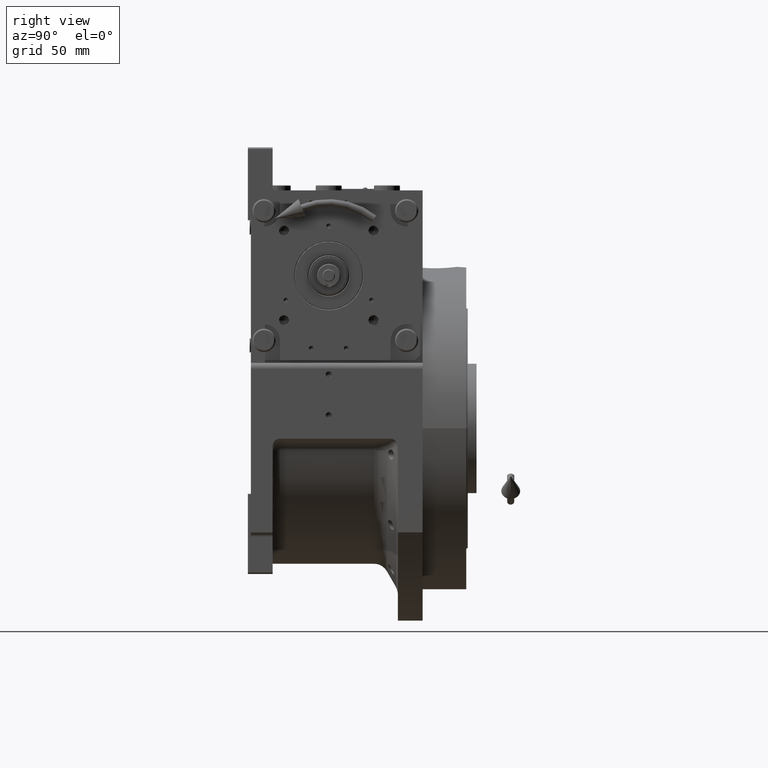
[diagram: clean part render]
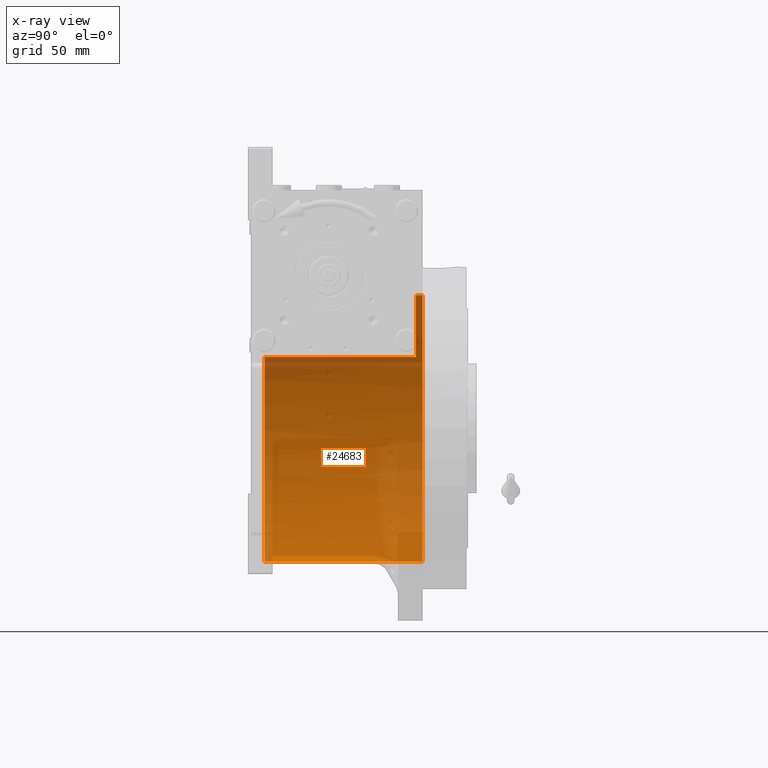
[diagram: x-ray — body ghosted, one internal face saturated and labeled with its STEP entity id]
A machine part, right view, then the same camera in x-ray: the body is ghosted and one INTERNAL B-rep face — a face not visible from any outside direction — is saturated and labeled: STEP entity #24683.
In plain terms, the highlighted cylindrical surface (partial cylindrical patch) has radius 91.5 mm, axis along (0, -1, 0).
Its self-contained STEP definition (entity closure, byte-faithful):
#140 = DIRECTION ( 'NONE',  ( 0.000000000000000000, 1.000000000000000000, 0.000000000000000000 ) ) ;
#471 = DIRECTION ( 'NONE',  ( 0.000000000000000000, -1.000000000000000000, 0.000000000000000000 ) ) ;
#2636 = VECTOR ( 'NONE', #32584, 1000.000000000000000 ) ;
#3146 = VERTEX_POINT ( 'NONE', #62274 ) ;
#4087 = CARTESIAN_POINT ( 'NONE',  ( 1.120551821219827868E-14, 60.00000000000000000, 91.50000000000000000 ) ) ;
#4831 = DIRECTION ( 'NONE',  ( 1.776356839400250465E-15, 0.000000000000000000, -1.000000000000000000 ) ) ;
#5402 = DIRECTION ( 'NONE',  ( -0.000000000000000000, -1.000000000000000000, -0.000000000000000000 ) ) ;
#7322 = FACE_OUTER_BOUND ( 'NONE', #39320, .T. ) ;
#7620 = LINE ( 'NONE', #60126, #17994 ) ;
#8321 = DIRECTION ( 'NONE',  ( 0.000000000000000000, -1.000000000000000000, 0.000000000000000000 ) ) ;
#8366 = CYLINDRICAL_SURFACE ( 'NONE', #15660, 91.50000000000000000 ) ;
#8422 = EDGE_CURVE ( 'NONE', #65023, #26821, #16586, .T. ) ;
#8597 = CIRCLE ( 'NONE', #51888, 91.50000000000000000 ) ;
#11423 = CIRCLE ( 'NONE', #30328, 91.50000000000000000 ) ;
#14100 = CARTESIAN_POINT ( 'NONE',  ( 0.000000000000000000, -44.00000000000000000, -91.50000000000000000 ) ) ;
#15197 = ORIENTED_EDGE ( 'NONE', *, *, #52430, .T. ) ;
#15365 = EDGE_CURVE ( 'NONE', #3146, #68338, #16170, .T. ) ;
#15660 = AXIS2_PLACEMENT_3D ( 'NONE', #24673, #34443, #29584 ) ;
#16170 = LINE ( 'NONE', #26903, #60243 ) ;
#16586 = LINE ( 'NONE', #58993, #2636 ) ;
#17994 = VECTOR ( 'NONE', #8321, 1000.000000000000000 ) ;
#18562 = VERTEX_POINT ( 'NONE', #36864 ) ;
#21677 = EDGE_CURVE ( 'NONE', #18562, #3146, #8597, .T. ) ;
#24673 = CARTESIAN_POINT ( 'NONE',  ( 0.000000000000000000, 69.00000000000004263, 0.000000000000000000 ) ) ;
#24683 = ADVANCED_FACE ( 'NONE', ( #7322 ), #8366, .F. ) ;
#26061 = CARTESIAN_POINT ( 'NONE',  ( 0.000000000000000000, 60.00000000000000000, 0.000000000000000000 ) ) ;
#26590 = ORIENTED_EDGE ( 'NONE', *, *, #8422, .F. ) ;
#26821 = VERTEX_POINT ( 'NONE', #56836 ) ;
#26903 = CARTESIAN_POINT ( 'NONE',  ( 0.000000000000000000, 69.00000000000004263, -91.50000000000000000 ) ) ;
#28598 = EDGE_CURVE ( 'NONE', #68338, #65023, #11423, .T. ) ;
#29584 = DIRECTION ( 'NONE',  ( 0.000000000000000000, 0.000000000000000000, -1.000000000000000000 ) ) ;
#30328 = AXIS2_PLACEMENT_3D ( 'NONE', #67616, #140, #41204 ) ;
#31712 = ORIENTED_EDGE ( 'NONE', *, *, #21677, .F. ) ;
#32433 = ORIENTED_EDGE ( 'NONE', *, *, #63638, .F. ) ;
#32584 = DIRECTION ( 'NONE',  ( -0.000000000000000000, 1.000000000000000000, -0.000000000000000000 ) ) ;
#34443 = DIRECTION ( 'NONE',  ( 0.000000000000000000, -1.000000000000000000, 0.000000000000000000 ) ) ;
#35461 = DIRECTION ( 'NONE',  ( 0.000000000000000000, 1.000000000000000000, 0.000000000000000000 ) ) ;
#35909 = CIRCLE ( 'NONE', #62548, 91.50000000000000000 ) ;
#36864 = CARTESIAN_POINT ( 'NONE',  ( 1.120551821219827868E-14, 64.50000000000000000, 91.50000000000000000 ) ) ;
#36880 = CARTESIAN_POINT ( 'NONE',  ( -77.27386362800814368, -44.00000000000000000, 49.00000000000000000 ) ) ;
#38906 = VERTEX_POINT ( 'NONE', #4087 ) ;
#39320 = EDGE_LOOP ( 'NONE', ( #31712, #15197, #32433, #26590, #64891, #44333 ) ) ;
#41204 = DIRECTION ( 'NONE',  ( 0.000000000000000000, 0.000000000000000000, 1.000000000000000000 ) ) ;
#44333 = ORIENTED_EDGE ( 'NONE', *, *, #15365, .F. ) ;
#51888 = AXIS2_PLACEMENT_3D ( 'NONE', #53077, #5402, #57944 ) ;
#52430 = EDGE_CURVE ( 'NONE', #18562, #38906, #7620, .T. ) ;
#53077 = CARTESIAN_POINT ( 'NONE',  ( 0.000000000000000000, 64.50000000000000000, 0.000000000000000000 ) ) ;
#56836 = CARTESIAN_POINT ( 'NONE',  ( -77.27386362800814368, 60.00000000000000000, 48.99999999999998579 ) ) ;
#57944 = DIRECTION ( 'NONE',  ( 0.000000000000000000, 0.000000000000000000, 1.000000000000000000 ) ) ;
#58993 = CARTESIAN_POINT ( 'NONE',  ( -77.27386362800812947, 69.00000000000004263, 48.99999999999998579 ) ) ;
#60126 = CARTESIAN_POINT ( 'NONE',  ( 1.120551821219827868E-14, 69.00000000000004263, 91.50000000000000000 ) ) ;
#60243 = VECTOR ( 'NONE', #471, 1000.000000000000000 ) ;
#62274 = CARTESIAN_POINT ( 'NONE',  ( 0.000000000000000000, 64.50000000000000000, -91.50000000000000000 ) ) ;
#62548 = AXIS2_PLACEMENT_3D ( 'NONE', #26061, #35461, #4831 ) ;
#63638 = EDGE_CURVE ( 'NONE', #26821, #38906, #35909, .T. ) ;
#64891 = ORIENTED_EDGE ( 'NONE', *, *, #28598, .F. ) ;
#65023 = VERTEX_POINT ( 'NONE', #36880 ) ;
#67616 = CARTESIAN_POINT ( 'NONE',  ( 0.000000000000000000, -44.00000000000000000, 0.000000000000000000 ) ) ;
#68338 = VERTEX_POINT ( 'NONE', #14100 ) ;